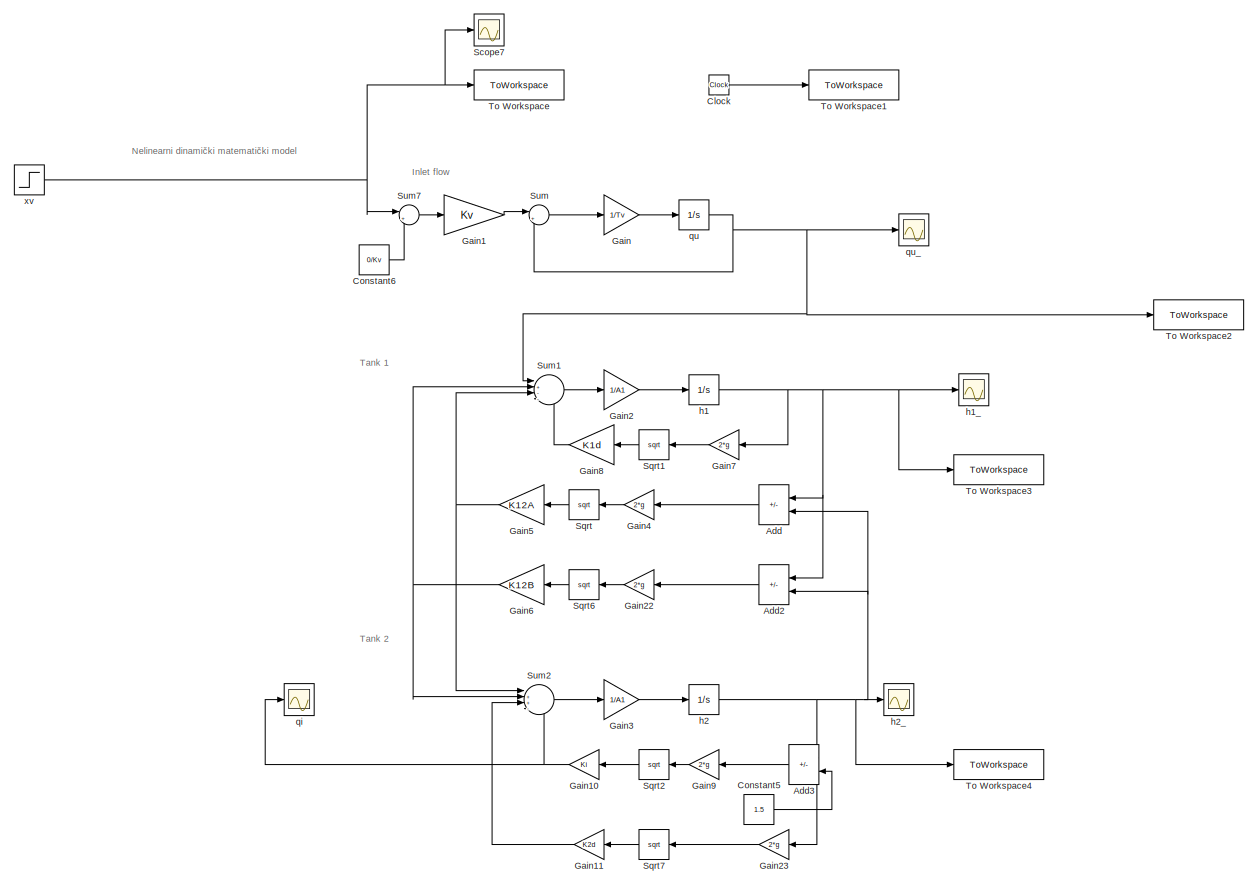
[diagram: root canvas - part 1/2, full width, top band]
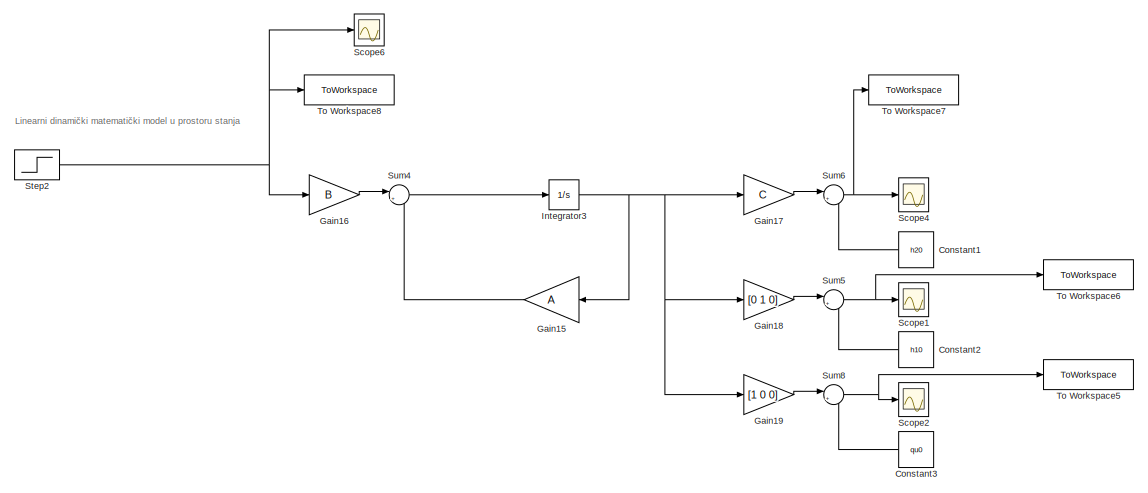
[diagram: root canvas - part 2/2, full width, bottom band]
MODEL slx_6f82bbab5844
KIND model
CONFIG AbsTol = auto
CONFIG EnableMultiTasking = off
CONFIG FixedStep = auto
CONFIG MaxStep = auto
CONFIG MinStep = auto
CONFIG RelTol = 1e-3
CONFIG SampleTimeConstraint = Unconstrained
CONFIG SolverName = VariableStepAuto
CONFIG StartTime = 0.0
CONFIG StopTime = 800
BLOCK [Sum] Add
  IconShape = rectangular
  Inputs = +-
  NameLocation = top
  Ports = [2, 1]
BLOCK [Sum] Add2
  IconShape = rectangular
  Inputs = +-
  NameLocation = top
  Ports = [2, 1]
BLOCK [Sum] Add3
  IconShape = rectangular
  Inputs = +-
  NameLocation = top
  Ports = [2, 1]
BLOCK [Clock] Clock
BLOCK [Constant] Constant1
  NameLocation = top
  Value = h20
BLOCK [Constant] Constant2
  NameLocation = top
  Value = h10
BLOCK [Constant] Constant3
  NameLocation = top
  Value = qu0
BLOCK [Constant] Constant5
  Value = 1.5
BLOCK [Constant] Constant6
  Value = 0/Kv
BLOCK [Gain] Gain
  Gain = 1/Tv
BLOCK [Gain] Gain1
  Gain = Kv
BLOCK [Gain] Gain10
  Gain = Ki
  NameLocation = top
BLOCK [Gain] Gain11
  Gain = K2d
  NameLocation = top
BLOCK [Gain] Gain15
  Gain = A
  Multiplication = Matrix(K*u)
  NameLocation = top
BLOCK [Gain] Gain16
  Gain = B
  Multiplication = Matrix(K*u)
BLOCK [Gain] Gain17
  Gain = C
  Multiplication = Matrix(K*u)
BLOCK [Gain] Gain18
  Gain = [0 1 0]
  Multiplication = Matrix(K*u)
BLOCK [Gain] Gain19
  Gain = [1 0 0]
  Multiplication = Matrix(K*u)
BLOCK [Gain] Gain2
  Gain = 1/A1
BLOCK [Gain] Gain22
  Gain = 2*g
  NameLocation = top
BLOCK [Gain] Gain23
  Gain = 2*g
  NameLocation = top
BLOCK [Gain] Gain3
  Gain = 1/A1
BLOCK [Gain] Gain4
  Gain = 2*g
  NameLocation = top
BLOCK [Gain] Gain5
  Gain = K12A
  NameLocation = top
BLOCK [Gain] Gain6
  Gain = K12B
  NameLocation = top
BLOCK [Gain] Gain7
  Gain = 2*g
  NameLocation = top
BLOCK [Gain] Gain8
  Gain = K1d
  NameLocation = top
BLOCK [Gain] Gain9
  Gain = 2*g
  NameLocation = top
BLOCK [Integrator] Integrator3
  Ports = [1, 1]
BLOCK [Scope] Scope1
  Floating = off
  NumInputPorts = 1
  Ports = [1]
  ScopeSpecificationString = Simulink.scopes.TimeScopeBlockCfg('CurrentConfiguration', extmgr.ConfigurationSet(extmgr.Configuration('Core','General UI',true),extmgr.Configuration('Core','Source UI',true),extmgr.Configuration('Sources','WiredSimulink',true,'DataLoggingVariableName','ScopeData1'),extmgr.Configuration('Visuals','Time Domain',true,'SerializedDisplays',{struct('MinYLimReal','-0.62095','MaxYLimReal','5.58859','YLab...<+1394ch>
BLOCK [Scope] Scope2
  Floating = off
  NumInputPorts = 1
  Ports = [1]
  ScopeSpecificationString = Simulink.scopes.TimeScopeBlockCfg('CurrentConfiguration', extmgr.ConfigurationSet(extmgr.Configuration('Core','General UI',true),extmgr.Configuration('Core','Source UI',true),extmgr.Configuration('Sources','WiredSimulink',true,'DataLoggingVariableName','ScopeData2'),extmgr.Configuration('Visuals','Time Domain',true,'SerializedDisplays',{struct('MinYLimReal','-9.54009','MaxYLimReal','90.45914','YLa...<+1414ch>
BLOCK [Scope] Scope4
  Floating = off
  NumInputPorts = 1
  Ports = [1]
  ScopeSpecificationString = Simulink.scopes.TimeScopeBlockCfg('CurrentConfiguration', extmgr.ConfigurationSet(extmgr.Configuration('Core','General UI',true),extmgr.Configuration('Core','Source UI',true),extmgr.Configuration('Sources','WiredSimulink',true,'DataLoggingVariableName','ScopeData3'),extmgr.Configuration('Visuals','Time Domain',true,'SerializedDisplays',{struct('MinYLimReal','-0.39323','MaxYLimReal','6.53311','YLab...<+1415ch>
BLOCK [Scope] Scope6
  Floating = off
  NumInputPorts = 1
  Ports = [1]
  ScopeSpecificationString = Simulink.scopes.TimeScopeBlockCfg('CurrentConfiguration', extmgr.ConfigurationSet(extmgr.Configuration('Core','General UI',true),extmgr.Configuration('Core','Source UI',true),extmgr.Configuration('Sources','WiredSimulink',true,'DataLoggingVariableName','ScopeData4'),extmgr.Configuration('Visuals','Time Domain',true,'SerializedDisplays',{struct('MinYLimReal','-3.125','MaxYLimReal','28.125','YLabelR...<+1356ch>
BLOCK [Scope] Scope7
  Floating = off
  NumInputPorts = 1
  Ports = [1]
  ScopeSpecificationString = Simulink.scopes.TimeScopeBlockCfg('CurrentConfiguration', extmgr.ConfigurationSet(extmgr.Configuration('Core','General UI',true),extmgr.Configuration('Core','Source UI',true),extmgr.Configuration('Sources','WiredSimulink',true,'DataLoggingVariableName','ScopeData5'),extmgr.Configuration('Visuals','Time Domain',true,'SerializedDisplays',{struct('MinYLimReal','21.875','MaxYLimReal','53.125','YLabelR...<+1384ch>
BLOCK [Sqrt] Sqrt
  NameLocation = top
BLOCK [Sqrt] Sqrt1
  NameLocation = top
BLOCK [Sqrt] Sqrt2
  NameLocation = top
BLOCK [Sqrt] Sqrt6
  NameLocation = top
BLOCK [Sqrt] Sqrt7
  NameLocation = top
BLOCK [Step] Step2
  After = 20
  SampleTime = 0
  Time = 0
BLOCK [Sum] Sum
  Inputs = |+-
  Ports = [2, 1]
BLOCK [Sum] Sum1
  Inputs = |+---
  Ports = [4, 1]
BLOCK [Sum] Sum2
  Inputs = |++--
  Ports = [4, 1]
BLOCK [Sum] Sum4
  Inputs = |++
  Ports = [2, 1]
BLOCK [Sum] Sum5
  Inputs = |++
  Ports = [2, 1]
BLOCK [Sum] Sum6
  Inputs = |++
  Ports = [2, 1]
BLOCK [Sum] Sum7
  Inputs = |++
  Ports = [2, 1]
BLOCK [Sum] Sum8
  Inputs = |++
  Ports = [2, 1]
BLOCK [ToWorkspace] To Workspace
  FixptAsFi = on
  MaxDataPoints = inf
  Ports = [1]
  SampleTime = Ts
  VariableName = xv
BLOCK [ToWorkspace] To Workspace1
  FixptAsFi = on
  MaxDataPoints = inf
  Ports = [1]
  SampleTime = Ts
  VariableName = t
BLOCK [ToWorkspace] To Workspace2
  FixptAsFi = on
  MaxDataPoints = inf
  Ports = [1]
  SampleTime = Ts
  VariableName = qu_nelin
BLOCK [ToWorkspace] To Workspace3
  FixptAsFi = on
  MaxDataPoints = inf
  Ports = [1]
  SampleTime = Ts
  VariableName = h1_nelin
BLOCK [ToWorkspace] To Workspace4
  FixptAsFi = on
  MaxDataPoints = inf
  Ports = [1]
  SampleTime = Ts
  VariableName = h2_nelin
BLOCK [ToWorkspace] To Workspace5
  FixptAsFi = on
  MaxDataPoints = inf
  Ports = [1]
  SampleTime = Ts
  VariableName = qu_lin
BLOCK [ToWorkspace] To Workspace6
  FixptAsFi = on
  MaxDataPoints = inf
  Ports = [1]
  SampleTime = Ts
  VariableName = h1_lin
BLOCK [ToWorkspace] To Workspace7
  FixptAsFi = on
  MaxDataPoints = inf
  Ports = [1]
  SampleTime = Ts
  VariableName = h2_lin
BLOCK [ToWorkspace] To Workspace8
  FixptAsFi = on
  MaxDataPoints = inf
  Ports = [1]
  SampleTime = Ts
  VariableName = xv_lin
BLOCK [Integrator] h1
  InitialCondition = h10
  Ports = [1, 1]
BLOCK [Scope] h1_
  Floating = off
  NumInputPorts = 1
  Ports = [1]
  ScopeSpecificationString = Simulink.scopes.TimeScopeBlockCfg('CurrentConfiguration', extmgr.ConfigurationSet(extmgr.Configuration('Core','General UI',true),extmgr.Configuration('Core','Source UI',true),extmgr.Configuration('Sources','WiredSimulink',true,'DataLoggingVariableName','ScopeData6'),extmgr.Configuration('Visuals','Time Domain',true,'SerializedDisplays',{struct('MinYLimReal','2.61942','MaxYLimReal','23.12447','YLab...<+1394ch>
BLOCK [Integrator] h2
  InitialCondition = h20
  Ports = [1, 1]
BLOCK [Scope] h2_
  Floating = off
  NumInputPorts = 1
  Ports = [1]
  ScopeSpecificationString = Simulink.scopes.TimeScopeBlockCfg('CurrentConfiguration', extmgr.ConfigurationSet(extmgr.Configuration('Core','General UI',true),extmgr.Configuration('Core','Source UI',true),extmgr.Configuration('Sources','WiredSimulink',true,'DataLoggingVariableName','ScopeData7'),extmgr.Configuration('Visuals','Time Domain',true,'SerializedDisplays',{struct('MinYLimReal','1.19569','MaxYLimReal','23.23875','YLab...<+1363ch>
BLOCK [Scope] qi
  Floating = off
  NumInputPorts = 1
  Ports = [1]
  ScopeSpecificationString = Simulink.scopes.TimeScopeBlockCfg('CurrentConfiguration', extmgr.ConfigurationSet(extmgr.Configuration('Core','General UI',true),extmgr.Configuration('Core','Source UI',true),extmgr.Configuration('Sources','WiredSimulink',true,'DataLoggingVariableName','ScopeData8'),extmgr.Configuration('Visuals','Time Domain',true,'SerializedDisplays',{struct('MinYLimReal','21.22836','MaxYLimReal','117.72031','YL...<+1375ch>
BLOCK [Integrator] qu
  InitialCondition = qu0
  Ports = [1, 1]
BLOCK [Scope] qu_
  Floating = off
  NumInputPorts = 1
  Ports = [1]
  ScopeSpecificationString = Simulink.scopes.TimeScopeBlockCfg('CurrentConfiguration', extmgr.ConfigurationSet(extmgr.Configuration('Core','General UI',true),extmgr.Configuration('Core','Source UI',true),extmgr.Configuration('Sources','WiredSimulink',true),extmgr.Configuration('Visuals','Time Domain',true,'SerializedDisplays',{struct('MinYLimReal','72.88563','MaxYLimReal','189.22937','YLabelReal','','MinYLimMag','72.88563','M...<+1332ch>
BLOCK [Step] xv
  After = 45
  Before = 25
  SampleTime = 0
  Time = 0
ANNOTATION (root): Inlet flow
ANNOTATION (root): Linearni dinamički matematički model u prostoru stanja
ANNOTATION (root): Nelinearni dinamički matematički model
ANNOTATION (root): Tank 1
ANNOTATION (root): Tank 2
LINE Add2:1 -> Gain22:1
LINE Add3:1 -> Gain9:1
LINE Add:1 -> Gain4:1
LINE Clock:1 -> To Workspace1:1
LINE Constant1:1 -> Sum6:2
LINE Constant2:1 -> Sum5:2
LINE Constant3:1 -> Sum8:2
LINE Constant5:1 -> Add3:2
LINE Constant6:1 -> Sum7:2
NET Gain10:1 -> Sum2:4, qi:1
LINE Gain11:1 -> Sum2:3
LINE Gain15:1 -> Sum4:2
LINE Gain16:1 -> Sum4:1
LINE Gain17:1 -> Sum6:1
LINE Gain18:1 -> Sum5:1
LINE Gain19:1 -> Sum8:1
LINE Gain1:1 -> Sum:1
LINE Gain22:1 -> Sqrt6:1
LINE Gain23:1 -> Sqrt7:1
LINE Gain2:1 -> h1:1
LINE Gain3:1 -> h2:1
LINE Gain4:1 -> Sqrt:1
NET Gain5:1 -> Sum1:3, Sum2:1
NET Gain6:1 -> Sum1:2, Sum2:2
LINE Gain7:1 -> Sqrt1:1
LINE Gain8:1 -> Sum1:4
LINE Gain9:1 -> Sqrt2:1
LINE Gain:1 -> qu:1
NET Integrator3:1 -> Gain15:1, Gain17:1, Gain18:1, Gain19:1
LINE Sqrt1:1 -> Gain8:1
LINE Sqrt2:1 -> Gain10:1
LINE Sqrt6:1 -> Gain6:1
LINE Sqrt7:1 -> Gain11:1
LINE Sqrt:1 -> Gain5:1
NET Step2:1 -> Gain16:1, Scope6:1, To Workspace8:1
LINE Sum1:1 -> Gain2:1
LINE Sum2:1 -> Gain3:1
LINE Sum4:1 -> Integrator3:1
NET Sum5:1 -> Scope1:1, To Workspace6:1
NET Sum6:1 -> Scope4:1, To Workspace7:1
LINE Sum7:1 -> Gain1:1
NET Sum8:1 -> Scope2:1, To Workspace5:1
LINE Sum:1 -> Gain:1
NET h1:1 -> Add2:1, Add:1, Gain7:1, To Workspace3:1, h1_:1
NET h2:1 -> Add2:2, Add3:1, Add:2, Gain23:1, To Workspace4:1, h2_:1
NET qu:1 -> Sum1:1, Sum:2, To Workspace2:1, qu_:1
NET xv:1 -> Scope7:1, Sum7:1, To Workspace:1
note: NET lines group one-source signal fan-out (src -> all destinations, sorted); 1:1 wires keep LINE
